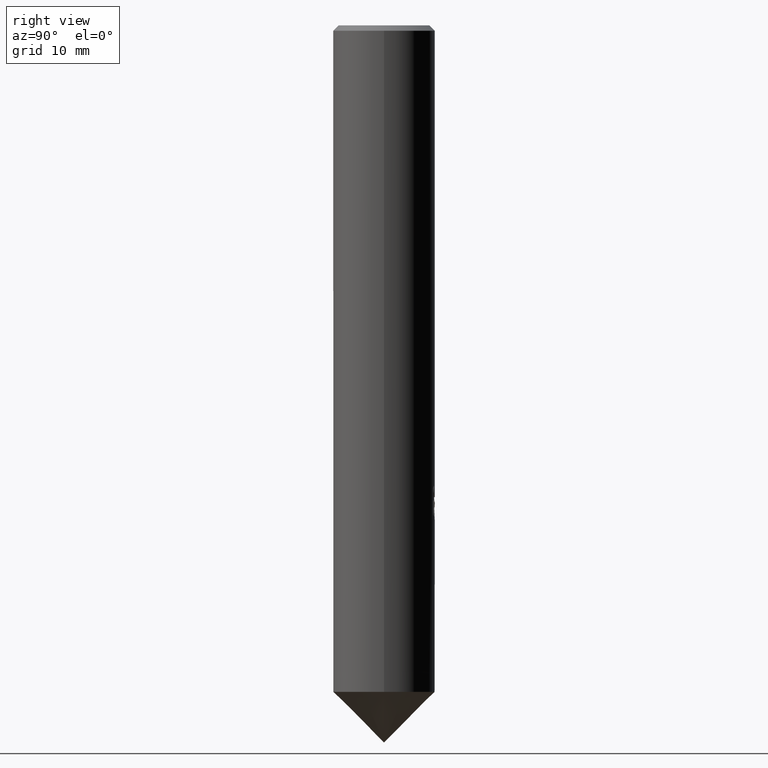
[diagram: clean part render]
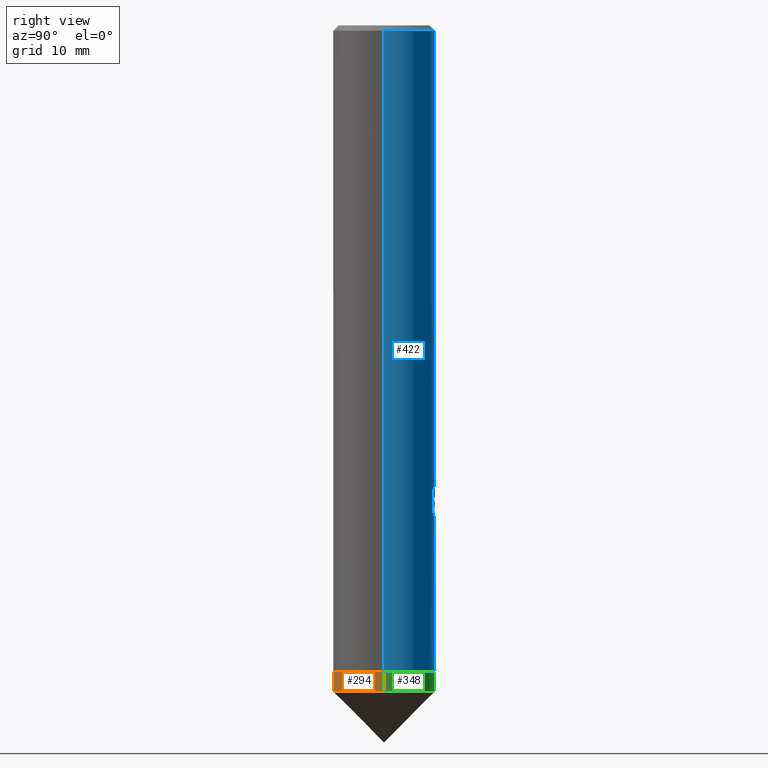
[diagram: same view with three faces highlighted in distinct colors, each labeled with its STEP entity id]
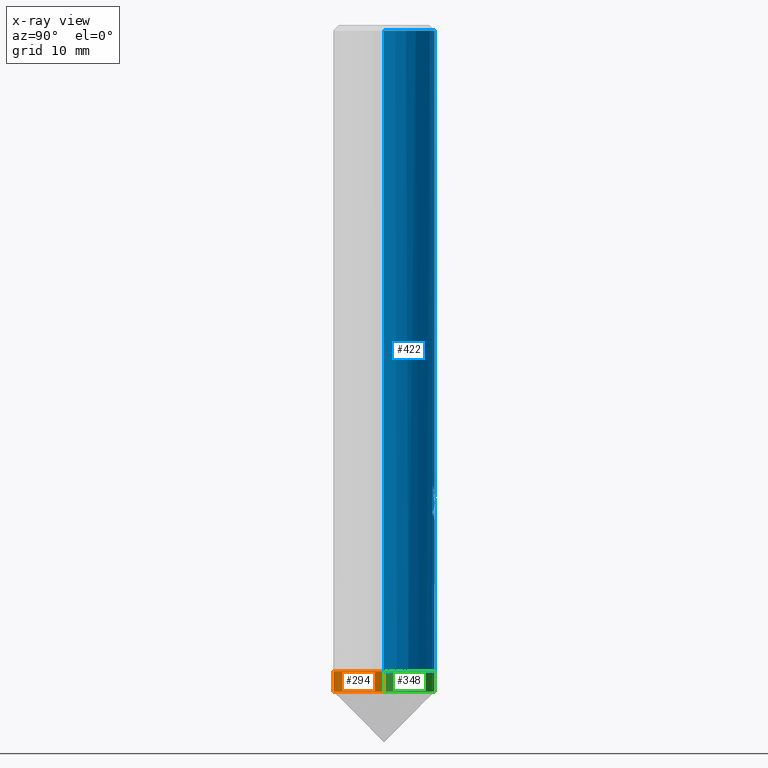
[diagram: x-ray of the same camera — body ghosted, the three highlighted faces saturated]
A machine part, right view with three faces highlighted in distinct colors.
The next image is the same camera in x-ray (body ghosted, the three faces saturated) — at least one of them is partly hidden behind the body in this view.
Their STEP definitions:

[orange] entity #294 — the highlighted cylindrical surface (partial cylindrical patch) has radius 7.5 mm, axis along (-0, -0, 1).
#196=EDGE_CURVE('',#366,#266,#508,.T.);
#198=EDGE_CURVE('',#266,#382,#510,.T.);
#226=EDGE_CURVE('',#366,#232,#542,.T.);
#232=VERTEX_POINT('',#548);
#266=VERTEX_POINT('',#585);
#282=EDGE_CURVE('',#382,#232,#603,.T.);
#294=ADVANCED_FACE('',(#616),#617,.T.);
#366=VERTEX_POINT('',#696);
#382=VERTEX_POINT('',#712);
#508=LINE('',#843,#844);
#510=CIRCLE('',#847,7.5);
#542=CIRCLE('',#913,7.5);
#548=CARTESIAN_POINT('',(-7.48169484918208,-0.523681376146174,-98.5));
#585=CARTESIAN_POINT('',(7.5,9.18454765366783E-016,-95.5));
#603=ELLIPSE('',#1078,214.902812608787,7.5);
#616=FACE_OUTER_BOUND('',#1119,.T.);
#617=CYLINDRICAL_SURFACE('',#1120,7.5);
#696=CARTESIAN_POINT('',(7.5,9.18454765366783E-016,-98.5));
#712=CARTESIAN_POINT('',(-7.47364246253125,-0.628226346351209,-95.5));
#843=CARTESIAN_POINT('',(7.5,9.18454765366783E-016,-97.0));
#844=VECTOR('',#1611,1.0);
#847=AXIS2_PLACEMENT_3D('',#1612,#1613,#1614);
#913=AXIS2_PLACEMENT_3D('',#1653,#1654,#1655);
#1078=AXIS2_PLACEMENT_3D('',#1710,#1711,#1712);
#1119=EDGE_LOOP('',(#1728,#1729,#1730,#1731));
#1120=AXIS2_PLACEMENT_3D('',#1732,#1733,#1734);
#1611=DIRECTION('',(-0.0,-0.0,1.0));
#1612=CARTESIAN_POINT('',(0.0,0.0,-95.5));
#1613=DIRECTION('',(0.0,0.0,-1.0));
#1614=DIRECTION('',(-1.0,0.0,0.0));
#1653=CARTESIAN_POINT('',(0.0,0.0,-98.5));
#1654=DIRECTION('',(0.0,0.0,-1.0));
#1655=DIRECTION('',(-1.0,0.0,0.0));
#1710=CARTESIAN_POINT('',(0.0,0.0,-106.01));
#1711=DIRECTION('',(0.0348782368720624,-0.998782025129912,-0.0348994967025078));
#1712=DIRECTION('',(-0.0012179748700881,0.0348782368720695,-0.999390827019096));
#1728=ORIENTED_EDGE('',*,*,#196,.T.);
#1729=ORIENTED_EDGE('',*,*,#198,.T.);
#1730=ORIENTED_EDGE('',*,*,#282,.T.);
#1731=ORIENTED_EDGE('',*,*,#226,.F.);
#1732=CARTESIAN_POINT('',(0.0,0.0,-97.0));
#1733=DIRECTION('',(-0.0,-0.0,1.0));
#1734=DIRECTION('',(-1.0,0.0,0.0));

[blue] entity #422 — the highlighted cylindrical surface (partial cylindrical patch) has radius 7.5 mm, axis along (-0, -0, 1).
#178=VERTEX_POINT('',#487);
#200=VERTEX_POINT('',#512);
#204=EDGE_CURVE('',#178,#320,#516,.T.);
#228=VERTEX_POINT('',#544);
#236=VERTEX_POINT('',#552);
#240=EDGE_CURVE('',#358,#378,#556,.T.);
#242=VERTEX_POINT('',#558);
#246=EDGE_CURVE('',#376,#460,#563,.T.);
#254=EDGE_CURVE('',#450,#242,#572,.T.);
#258=EDGE_CURVE('',#236,#326,#577,.T.);
#260=VERTEX_POINT('',#579);
#276=EDGE_CURVE('',#326,#260,#597,.T.);
#290=EDGE_CURVE('',#260,#376,#612,.T.);
#292=EDGE_CURVE('',#426,#434,#614,.T.);
#298=VERTEX_POINT('',#622);
#304=VERTEX_POINT('',#628);
#310=EDGE_CURVE('',#428,#320,#635,.T.);
#312=VERTEX_POINT('',#637);
#320=VERTEX_POINT('',#645);
#324=EDGE_CURVE('',#378,#236,#649,.T.);
#326=VERTEX_POINT('',#651);
#342=EDGE_CURVE('',#200,#450,#668,.T.);
#356=EDGE_CURVE('',#424,#426,#686,.T.);
#358=VERTEX_POINT('',#688);
#360=EDGE_CURVE('',#298,#304,#690,.T.);
#376=VERTEX_POINT('',#706);
#378=VERTEX_POINT('',#708);
#386=EDGE_CURVE('',#434,#312,#717,.T.);
#394=EDGE_CURVE('',#298,#178,#726,.T.);
#414=EDGE_CURVE('',#228,#304,#746,.T.);
#422=ADVANCED_FACE('',(#754,#755),#756,.T.);
#424=VERTEX_POINT('',#758);
#426=VERTEX_POINT('',#760);
#428=VERTEX_POINT('',#762);
#434=VERTEX_POINT('',#768);
#444=EDGE_CURVE('',#460,#424,#779,.T.);
#450=VERTEX_POINT('',#785);
#458=EDGE_CURVE('',#228,#428,#795,.T.);
#460=VERTEX_POINT('',#797);
#462=EDGE_CURVE('',#242,#358,#799,.T.);
#466=EDGE_CURVE('',#312,#200,#803,.T.);
#487=CARTESIAN_POINT('',(0.0,7.5,-0.799999999999997));
#512=CARTESIAN_POINT('',(1.33238621064061,7.38070098199993,-68.0000004614549));
#516=CIRCLE('',#856,7.5);
#544=CARTESIAN_POINT('',(-3.09755287899954,6.83045870800795,-95.5));
#552=CARTESIAN_POINT('',(-3.83043648745818E-016,7.5,-70.5001335919803));
#556=CIRCLE('',#953,7.5);
#558=CARTESIAN_POINT('',(-0.810631573971744,7.45606306647684,-69.072139580501));
#563=B_SPLINE_CURVE_WITH_KNOTS('',3,(#961,#962,#963,#964,#965,#966,#967,#968,#969,#970,#971,#972,#973,#974,#975,#976),.UNSPECIFIED.,.F.,.F.,(4,2,2,2,2,2,2,4),(9.81173901346982,10.3283515357489,10.8450345072355,11.3617174787222,11.8784004502088,12.3950834216954,12.91080996831,13.4265365149246),.UNSPECIFIED.);
#572=B_SPLINE_CURVE_WITH_KNOTS('',3,(#988,#989,#990,#991,#992,#993,#994,#995,#996,#997,#998,#999,#1000,#1001,#1002,#1003,#1004,#1005,#1006,#1007,#1008,#1009,#1010,#1011,#1012,#1013,#1014),.UNSPECIFIED.,.F.,.F.,(4,2,3,2,2,2,2,2,2,2,2,2,4),(-0.904509833545436,-0.452254916772718,0.0,0.452254916772718,0.904509833545436,1.35793525760971,1.81136068167399,2.26281485429434,2.71426902691469,3.16630465879039,3.61834029066608,4.07037592254178,4.52241155441748),.UNSPECIFIED.);
#577=B_SPLINE_CURVE_WITH_KNOTS('',3,(#1020,#1021,#1022,#1023,#1024,#1025,#1026,#1027,#1028,#1029,#1030,#1031,#1032,#1033,#1034,#1035,#1036,#1037,#1038,#1039,#1040,#1041,#1042,#1043),.UNSPECIFIED.,.F.,.F.,(4,2,2,2,2,2,2,2,2,2,2,4),(5.60096093075086,5.97408963382988,6.3472183369089,6.72034703998792,7.09347574306694,7.46660444614596,7.83878206355249,8.21095968095902,8.58313729836555,8.95531491577207,9.33006131062293,9.70480770547378),.UNSPECIFIED.);
#579=CARTESIAN_POINT('',(-2.22842125407166,7.16129448594328,-71.9534673181325));
#597=ELLIPSE('',#1069,8.36196324032145,7.5);
#612=B_SPLINE_CURVE_WITH_KNOTS('',3,(#1090,#1091,#1092,#1093,#1094,#1095,#1096,#1097,#1098,#1099,#1100,#1101,#1102,#1103,#1104,#1105),.UNSPECIFIED.,.F.,.F.,(4,2,2,2,2,2,2,4),(9.81173901346982,10.3283515357489,10.8450345072355,11.3617174787222,11.8784004502088,12.3950834216954,12.91080996831,13.4265365149246),.UNSPECIFIED.);
#614=B_SPLINE_CURVE_WITH_KNOTS('',3,(#1108,#1109,#1110,#1111,#1112,#1113,#1114,#1115,#1116,#1117),.UNSPECIFIED.,.F.,.F.,(4,2,2,2,4),(13.4265350890233,13.9422615882962,14.4579880875692,14.9744413641915,15.4908946408138),.UNSPECIFIED.);
#622=CARTESIAN_POINT('',(-7.5,-9.18454765366783E-016,-0.799999999999997));
#628=CARTESIAN_POINT('',(-7.5,-3.90867229828002E-015,-92.4758135150197));
#635=LINE('',#1167,#1168);
#637=CARTESIAN_POINT('',(2.22868344191096,7.16121289417874,-68.8584140608035));
#645=CARTESIAN_POINT('',(7.5,9.18454765366783E-016,-0.799999999999997));
#649=B_SPLINE_CURVE_WITH_KNOTS('',3,(#1204,#1205,#1206,#1207,#1208,#1209,#1210,#1211,#1212,#1213,#1214,#1215,#1216,#1217,#1218,#1219,#1220,#1221,#1222,#1223,#1224,#1225,#1226,#1227),.UNSPECIFIED.,.F.,.F.,(4,2,2,2,2,2,2,2,2,2,2,4),(5.60096093075086,5.97408963382988,6.3472183369089,6.72034703998792,7.09347574306694,7.46660444614596,7.83878206355249,8.21095968095902,8.58313729836555,8.95531491577207,9.33006131062293,9.70480770547378),.UNSPECIFIED.);
#651=CARTESIAN_POINT('',(0.955211726384364,7.43892267453949,-70.3838832790445));
#668=B_SPLINE_CURVE_WITH_KNOTS('',3,(#1250,#1251,#1252,#1253,#1254,#1255,#1256,#1257,#1258,#1259,#1260,#1261,#1262,#1263,#1264,#1265,#1266,#1267,#1268,#1269,#1270,#1271,#1272,#1273,#1274,#1275,#1276),.UNSPECIFIED.,.F.,.F.,(4,2,3,2,2,2,2,2,2,2,2,2,4),(-0.904509833545436,-0.452254916772718,0.0,0.452254916772718,0.904509833545436,1.35793525760971,1.81136068167399,2.26281485429434,2.71426902691469,3.16630465879039,3.61834029066608,4.07037592254178,4.52241155441748),.UNSPECIFIED.);
#686=LINE('',#1296,#1297);
#688=CARTESIAN_POINT('',(-0.937223317046688,7.44121041591917,-68.5285369978285));
#690=LINE('',#1302,#1303);
#706=CARTESIAN_POINT('',(2.60902496438869E-016,7.5,-73.0517089335056));
#708=CARTESIAN_POINT('',(-1.72512233984799,7.29890080166578,-68.5285369978285));
#717=LINE('',#1372,#1373);
#726=CIRCLE('',#1386,7.5);
#746=ELLIPSE('',#1424,16.3893911124316,7.5);
#754=FACE_OUTER_BOUND('',#1458,.T.);
#755=FACE_BOUND('',#1459,.T.);
#756=CYLINDRICAL_SURFACE('',#1460,7.5);
#758=CARTESIAN_POINT('',(1.45593463626493,7.357326575253,-70.1998219326819));
#760=CARTESIAN_POINT('',(1.45593463626493,7.35732657525301,-72.5978919652552));
#762=CARTESIAN_POINT('',(7.5,9.18454765366783E-016,-95.5));
#768=CARTESIAN_POINT('',(2.22868344191097,7.16121289417874,-71.8169428338762));
#779=ELLIPSE('',#1513,22.8599593002733,7.5);
#785=CARTESIAN_POINT('',(-1.4969480123102E-014,7.5,-69.7054480196239));
#795=CIRCLE('',#1534,7.5);
#797=CARTESIAN_POINT('',(0.483505211726384,7.48439862047937,-72.9997214983713));
#799=B_SPLINE_CURVE_WITH_KNOTS('',3,(#1539,#1540,#1541,#1542,#1543,#1544,#1545,#1546,#1547,#1548,#1549,#1550,#1551,#1552,#1553,#1554,#1555,#1556,#1557,#1558,#1559,#1560,#1561,#1562,#1563,#1564,#1565),.UNSPECIFIED.,.F.,.F.,(4,2,3,2,2,2,2,2,2,2,2,2,4),(-0.904509833545436,-0.452254916772718,0.0,0.452254916772718,0.904509833545436,1.35793525760971,1.81136068167399,2.26281485429434,2.71426902691469,3.16630465879039,3.61834029066608,4.07037592254178,4.52241155441748),.UNSPECIFIED.);
#803=B_SPLINE_CURVE_WITH_KNOTS('',3,(#1570,#1571,#1572,#1573,#1574,#1575,#1576,#1577,#1578,#1579),.UNSPECIFIED.,.F.,.F.,(4,2,2,2,4),(1.03290658924787,1.5493598838718,2.06581317849573,2.58153969510637,3.09726621171701),.UNSPECIFIED.);
#856=AXIS2_PLACEMENT_3D('',#1616,#1617,#1618);
#953=AXIS2_PLACEMENT_3D('',#1657,#1658,#1659);
#961=CARTESIAN_POINT('',(-2.29836033517507,7.13915539610211,-71.8545128368396));
#962=CARTESIAN_POINT('',(-2.19906627440896,7.17112185679148,-72.0018724018475));
#963=CARTESIAN_POINT('',(-2.08667040901182,7.20493962306147,-72.137022562698));
#964=CARTESIAN_POINT('',(-1.84755144318272,7.26993165159933,-72.3762535029821));
#965=CARTESIAN_POINT('',(-1.71239495784496,7.30345299158513,-72.4887644715165));
#966=CARTESIAN_POINT('',(-1.41755423048429,7.36636016600066,-72.6876005022122));
#967=CARTESIAN_POINT('',(-1.25786870894077,7.39569192721202,-72.7739407706185));
#968=CARTESIAN_POINT('',(-0.923862733634749,7.44479485430824,-72.9130442039803));
#969=CARTESIAN_POINT('',(-0.749249283065715,7.46457069233769,-72.9659171020197));
#970=CARTESIAN_POINT('',(-0.397067779171441,7.49156374115895,-73.0354654713975));
#971=CARTESIAN_POINT('',(-0.219494518578778,7.49876553321981,-73.0521205558477));
#972=CARTESIAN_POINT('',(0.124635152133773,7.50093452385587,-73.0521205558477));
#973=CARTESIAN_POINT('',(0.301969563829018,7.49599164569269,-73.0355259588882));
#974=CARTESIAN_POINT('',(0.653822909888598,7.47352607356549,-72.9661414639208));
#975=CARTESIAN_POINT('',(0.828346642073313,7.45601892785507,-72.9133708640003));
#976=CARTESIAN_POINT('',(0.99530970164221,7.4336638744173,-72.8439151523424));
#988=CARTESIAN_POINT('',(1.10864643377757,7.41760763891379,-67.6894358580486));
#989=CARTESIAN_POINT('',(1.21458332167573,7.40177415746114,-67.7955147592773));
#990=CARTESIAN_POINT('',(1.30659335847987,7.38557219237147,-67.9298903231175));
#991=CARTESIAN_POINT('',(1.4288125046028,7.36290416161891,-68.2247772323026));
#992=CARTESIAN_POINT('',(1.45900163531428,7.35671898526444,-68.3853183820537));
#993=CARTESIAN_POINT('',(1.45900163531428,7.35671898526444,-68.536070020978));
#994=CARTESIAN_POINT('',(1.45900163531428,7.35671898526444,-68.6868216599022));
#995=CARTESIAN_POINT('',(1.4288125046028,7.36290416161891,-68.8473628096534));
#996=CARTESIAN_POINT('',(1.30659335847987,7.38557219237147,-69.1422497188385));
#997=CARTESIAN_POINT('',(1.21458332167573,7.40177415746114,-69.2766252826787));
#998=CARTESIAN_POINT('',(1.00243536444958,7.43348209992201,-69.4890576341189));
#999=CARTESIAN_POINT('',(0.867915974041627,7.45108824597777,-69.5813229205535));
#1000=CARTESIAN_POINT('',(0.572678300806284,7.47957443641096,-69.7039012217169));
#1001=CARTESIAN_POINT('',(0.411927665311358,7.49020423250816,-69.7341943379578));
#1002=CARTESIAN_POINT('',(0.110483657548405,7.50069590195699,-69.7341943379578));
#1003=CARTESIAN_POINT('',(-0.0499631172204885,7.50128560435152,-69.7041364775545));
#1004=CARTESIAN_POINT('',(-0.345035493746119,7.49351269697065,-69.5819527505174));
#1005=CARTESIAN_POINT('',(-0.47967086753128,7.4854046675746,-69.4898344206221));
#1006=CARTESIAN_POINT('',(-0.692389920413091,7.46873434235238,-69.2772973205899));
#1007=CARTESIAN_POINT('',(-0.784656861951013,7.4590957448354,-69.1426202483256));
#1008=CARTESIAN_POINT('',(-0.907089795370017,7.44519871171112,-68.8473539492699));
#1009=CARTESIAN_POINT('',(-0.937246998645411,7.44120743317441,-68.6867485649366));
#1010=CARTESIAN_POINT('',(-0.937246998645411,7.44120743317441,-68.3853914770194));
#1011=CARTESIAN_POINT('',(-0.907089795370017,7.44519871171112,-68.224786092686));
#1012=CARTESIAN_POINT('',(-0.784656861951013,7.4590957448354,-67.9295197936303));
#1013=CARTESIAN_POINT('',(-0.692389920413091,7.46873434235238,-67.794842721366));
#1014=CARTESIAN_POINT('',(-0.585961944133862,7.47707486922706,-67.6885057800613));
#1020=CARTESIAN_POINT('',(-1.68812520786749,7.30754632435281,-68.1633615326722));
#1021=CARTESIAN_POINT('',(-1.71322417284954,7.30174818179187,-68.2909902042745));
#1022=CARTESIAN_POINT('',(-1.72518169650311,7.29888677224484,-68.419460200195));
#1023=CARTESIAN_POINT('',(-1.72518169650311,7.29888677224484,-68.6682126689143));
#1024=CARTESIAN_POINT('',(-1.71322417284954,7.30174818179187,-68.7966826648348));
#1025=CARTESIAN_POINT('',(-1.66302624288545,7.31334446691376,-69.0519400080394));
#1026=CARTESIAN_POINT('',(-1.62479841200523,7.32206890991303,-69.178730302039));
#1027=CARTESIAN_POINT('',(-1.52389065068901,7.34373339294348,-69.4216658621551));
#1028=CARTESIAN_POINT('',(-1.46113073981184,7.35666577394528,-69.5380131515132));
#1029=CARTESIAN_POINT('',(-1.31624403788719,7.38396478733673,-69.7530713382023));
#1030=CARTESIAN_POINT('',(-1.23410642650275,7.39829839251124,-69.8517791367584));
#1031=CARTESIAN_POINT('',(-1.05934846875904,7.42533357453121,-70.0262753346161));
#1032=CARTESIAN_POINT('',(-0.960731197084373,7.43899782715787,-70.1081331109411));
#1033=CARTESIAN_POINT('',(-0.745866160019249,7.46360347129761,-70.2525441398834));
#1034=CARTESIAN_POINT('',(-0.629621415304482,7.47451439414858,-70.3151070765314));
#1035=CARTESIAN_POINT('',(-0.386964218263434,7.49099774709214,-70.4156692899029));
#1036=CARTESIAN_POINT('',(-0.260344986327904,7.49656282466933,-70.4537505446869));
#1037=CARTESIAN_POINT('',(-0.00556198326740301,7.50108010625554,-70.5037286641956));
#1038=CARTESIAN_POINT('',(0.122604122569059,7.50002392767339,-70.5156143834777));
#1039=CARTESIAN_POINT('',(0.371444178459269,7.49183776490605,-70.5156143834777));
#1040=CARTESIAN_POINT('',(0.500250849857512,7.48439745225386,-70.5035669773562));
#1041=CARTESIAN_POINT('',(0.75591256093333,7.46291178671589,-70.4531508018192));
#1042=CARTESIAN_POINT('',(0.882771086097311,7.44887448714623,-70.4147962767318));
#1043=CARTESIAN_POINT('',(1.00420714310337,7.43246715524126,-70.3642578193381));
#1069=AXIS2_PLACEMENT_3D('',#1706,#1707,#1708);
#1090=CARTESIAN_POINT('',(-2.29836033517507,7.13915539610211,-71.8545128368396));
#1091=CARTESIAN_POINT('',(-2.19906627440896,7.17112185679148,-72.0018724018475));
#1092=CARTESIAN_POINT('',(-2.08667040901182,7.20493962306147,-72.137022562698));
#1093=CARTESIAN_POINT('',(-1.84755144318272,7.26993165159933,-72.3762535029821));
#1094=CARTESIAN_POINT('',(-1.71239495784496,7.30345299158513,-72.4887644715165));
#1095=CARTESIAN_POINT('',(-1.41755423048429,7.36636016600066,-72.6876005022122));
#1096=CARTESIAN_POINT('',(-1.25786870894077,7.39569192721202,-72.7739407706185));
#1097=CARTESIAN_POINT('',(-0.923862733634749,7.44479485430824,-72.9130442039803));
#1098=CARTESIAN_POINT('',(-0.749249283065715,7.46457069233769,-72.9659171020197));
#1099=CARTESIAN_POINT('',(-0.397067779171441,7.49156374115895,-73.0354654713975));
#1100=CARTESIAN_POINT('',(-0.219494518578778,7.49876553321981,-73.0521205558477));
#1101=CARTESIAN_POINT('',(0.124635152133773,7.50093452385587,-73.0521205558477));
#1102=CARTESIAN_POINT('',(0.301969563829018,7.49599164569269,-73.0355259588882));
#1103=CARTESIAN_POINT('',(0.653822909888598,7.47352607356549,-72.9661414639208));
#1104=CARTESIAN_POINT('',(0.828346642073313,7.45601892785507,-72.9133708640003));
#1105=CARTESIAN_POINT('',(0.99530970164221,7.4336638744173,-72.8439151523424));
#1108=CARTESIAN_POINT('',(0.995309245010659,7.4336639355567,-72.8439144288741));
#1109=CARTESIAN_POINT('',(1.16227229054395,7.41130889443818,-72.7744587234116));
#1110=CARTESIAN_POINT('',(1.32196963887101,7.3841049748622,-72.6882068071625));
#1111=CARTESIAN_POINT('',(1.61687371380183,7.32518459834461,-72.489520864549));
#1112=CARTESIAN_POINT('',(1.75208127323699,7.29352240801456,-72.377071985537));
#1113=CARTESIAN_POINT('',(1.99147895997876,7.231826359247,-72.1377822503925));
#1114=CARTESIAN_POINT('',(2.10405659773894,7.19956705675755,-72.0024969070207));
#1115=CARTESIAN_POINT('',(2.30291354797822,7.1384458507118,-71.7075190358582));
#1116=CARTESIAN_POINT('',(2.38921121502558,7.10964712170796,-71.547825795169));
#1117=CARTESIAN_POINT('',(2.45871672792749,7.08552835375101,-71.3808547439878));
#1167=CARTESIAN_POINT('',(7.5,9.18454765366783E-016,-89.25));
#1168=VECTOR('',#1755,1.0);
#1204=CARTESIAN_POINT('',(-1.68812520786749,7.30754632435281,-68.1633615326722));
#1205=CARTESIAN_POINT('',(-1.71322417284954,7.30174818179187,-68.2909902042745));
#1206=CARTESIAN_POINT('',(-1.72518169650311,7.29888677224484,-68.419460200195));
#1207=CARTESIAN_POINT('',(-1.72518169650311,7.29888677224484,-68.6682126689143));
#1208=CARTESIAN_POINT('',(-1.71322417284954,7.30174818179187,-68.7966826648348));
#1209=CARTESIAN_POINT('',(-1.66302624288545,7.31334446691376,-69.0519400080394));
#1210=CARTESIAN_POINT('',(-1.62479841200523,7.32206890991303,-69.178730302039));
#1211=CARTESIAN_POINT('',(-1.52389065068901,7.34373339294348,-69.4216658621551));
#1212=CARTESIAN_POINT('',(-1.46113073981184,7.35666577394528,-69.5380131515132));
#1213=CARTESIAN_POINT('',(-1.31624403788719,7.38396478733673,-69.7530713382023));
#1214=CARTESIAN_POINT('',(-1.23410642650275,7.39829839251124,-69.8517791367584));
#1215=CARTESIAN_POINT('',(-1.05934846875904,7.42533357453121,-70.0262753346161));
#1216=CARTESIAN_POINT('',(-0.960731197084373,7.43899782715787,-70.1081331109411));
#1217=CARTESIAN_POINT('',(-0.745866160019249,7.46360347129761,-70.2525441398834));
#1218=CARTESIAN_POINT('',(-0.629621415304482,7.47451439414858,-70.3151070765314));
#1219=CARTESIAN_POINT('',(-0.386964218263434,7.49099774709214,-70.4156692899029));
#1220=CARTESIAN_POINT('',(-0.260344986327904,7.49656282466933,-70.4537505446869));
#1221=CARTESIAN_POINT('',(-0.00556198326740301,7.50108010625554,-70.5037286641956));
#1222=CARTESIAN_POINT('',(0.122604122569059,7.50002392767339,-70.5156143834777));
#1223=CARTESIAN_POINT('',(0.371444178459269,7.49183776490605,-70.5156143834777));
#1224=CARTESIAN_POINT('',(0.500250849857512,7.48439745225386,-70.5035669773562));
#1225=CARTESIAN_POINT('',(0.75591256093333,7.46291178671589,-70.4531508018192));
#1226=CARTESIAN_POINT('',(0.882771086097311,7.44887448714623,-70.4147962767318));
#1227=CARTESIAN_POINT('',(1.00420714310337,7.43246715524126,-70.3642578193381));
#1250=CARTESIAN_POINT('',(1.10864643377757,7.41760763891379,-67.6894358580486));
#1251=CARTESIAN_POINT('',(1.21458332167573,7.40177415746114,-67.7955147592773));
#1252=CARTESIAN_POINT('',(1.30659335847987,7.38557219237147,-67.9298903231175));
#1253=CARTESIAN_POINT('',(1.4288125046028,7.36290416161891,-68.2247772323026));
#1254=CARTESIAN_POINT('',(1.45900163531428,7.35671898526444,-68.3853183820537));
#1255=CARTESIAN_POINT('',(1.45900163531428,7.35671898526444,-68.536070020978));
#1256=CARTESIAN_POINT('',(1.45900163531428,7.35671898526444,-68.6868216599022));
#1257=CARTESIAN_POINT('',(1.4288125046028,7.36290416161891,-68.8473628096534));
#1258=CARTESIAN_POINT('',(1.30659335847987,7.38557219237147,-69.1422497188385));
#1259=CARTESIAN_POINT('',(1.21458332167573,7.40177415746114,-69.2766252826787));
#1260=CARTESIAN_POINT('',(1.00243536444958,7.43348209992201,-69.4890576341189));
#1261=CARTESIAN_POINT('',(0.867915974041627,7.45108824597777,-69.5813229205535));
#1262=CARTESIAN_POINT('',(0.572678300806284,7.47957443641096,-69.7039012217169));
#1263=CARTESIAN_POINT('',(0.411927665311358,7.49020423250816,-69.7341943379578));
#1264=CARTESIAN_POINT('',(0.110483657548405,7.50069590195699,-69.7341943379578));
#1265=CARTESIAN_POINT('',(-0.0499631172204885,7.50128560435152,-69.7041364775545));
#1266=CARTESIAN_POINT('',(-0.345035493746119,7.49351269697065,-69.5819527505174));
#1267=CARTESIAN_POINT('',(-0.47967086753128,7.4854046675746,-69.4898344206221));
#1268=CARTESIAN_POINT('',(-0.692389920413091,7.46873434235238,-69.2772973205899));
#1269=CARTESIAN_POINT('',(-0.784656861951013,7.4590957448354,-69.1426202483256));
#1270=CARTESIAN_POINT('',(-0.907089795370017,7.44519871171112,-68.8473539492699));
#1271=CARTESIAN_POINT('',(-0.937246998645411,7.44120743317441,-68.6867485649366));
#1272=CARTESIAN_POINT('',(-0.937246998645411,7.44120743317441,-68.3853914770194));
#1273=CARTESIAN_POINT('',(-0.907089795370017,7.44519871171112,-68.224786092686));
#1274=CARTESIAN_POINT('',(-0.784656861951013,7.4590957448354,-67.9295197936303));
#1275=CARTESIAN_POINT('',(-0.692389920413091,7.46873434235238,-67.794842721366));
#1276=CARTESIAN_POINT('',(-0.585961944133862,7.47707486922706,-67.6885057800613));
#1296=CARTESIAN_POINT('',(1.45593463626493,7.357326575253,-71.3988569489685));
#1297=VECTOR('',#1818,1.0);
#1302=CARTESIAN_POINT('',(-7.5,-9.18454765366783E-016,-89.25));
#1303=VECTOR('',#1819,1.0);
#1372=CARTESIAN_POINT('',(2.22868344191097,7.16121289417874,-70.3376784473398));
#1373=VECTOR('',#1835,1.0);
#1386=AXIS2_PLACEMENT_3D('',#1847,#1848,#1849);
#1424=AXIS2_PLACEMENT_3D('',#1856,#1857,#1858);
#1458=EDGE_LOOP('',(#1864,#1865,#1866,#1867,#1868,#1869));
#1459=EDGE_LOOP('',(#1870,#1871,#1872,#1873,#1874,#1875,#1876,#1877,#1878,#1879,#1880,#1881,#1882,#1883));
#1460=AXIS2_PLACEMENT_3D('',#1884,#1885,#1886);
#1513=AXIS2_PLACEMENT_3D('',#1901,#1902,#1903);
#1534=AXIS2_PLACEMENT_3D('',#1923,#1924,#1925);
#1539=CARTESIAN_POINT('',(1.10864643377757,7.41760763891379,-67.6894358580486));
#1540=CARTESIAN_POINT('',(1.21458332167573,7.40177415746114,-67.7955147592773));
#1541=CARTESIAN_POINT('',(1.30659335847987,7.38557219237147,-67.9298903231175));
#1542=CARTESIAN_POINT('',(1.4288125046028,7.36290416161891,-68.2247772323026));
#1543=CARTESIAN_POINT('',(1.45900163531428,7.35671898526444,-68.3853183820537));
#1544=CARTESIAN_POINT('',(1.45900163531428,7.35671898526444,-68.536070020978));
#1545=CARTESIAN_POINT('',(1.45900163531428,7.35671898526444,-68.6868216599022));
#1546=CARTESIAN_POINT('',(1.4288125046028,7.36290416161891,-68.8473628096534));
#1547=CARTESIAN_POINT('',(1.30659335847987,7.38557219237147,-69.1422497188385));
#1548=CARTESIAN_POINT('',(1.21458332167573,7.40177415746114,-69.2766252826787));
#1549=CARTESIAN_POINT('',(1.00243536444958,7.43348209992201,-69.4890576341189));
#1550=CARTESIAN_POINT('',(0.867915974041627,7.45108824597777,-69.5813229205535));
#1551=CARTESIAN_POINT('',(0.572678300806284,7.47957443641096,-69.7039012217169));
#1552=CARTESIAN_POINT('',(0.411927665311358,7.49020423250816,-69.7341943379578));
#1553=CARTESIAN_POINT('',(0.110483657548405,7.50069590195699,-69.7341943379578));
#1554=CARTESIAN_POINT('',(-0.0499631172204885,7.50128560435152,-69.7041364775545));
#1555=CARTESIAN_POINT('',(-0.345035493746119,7.49351269697065,-69.5819527505174));
#1556=CARTESIAN_POINT('',(-0.47967086753128,7.4854046675746,-69.4898344206221));
#1557=CARTESIAN_POINT('',(-0.692389920413091,7.46873434235238,-69.2772973205899));
#1558=CARTESIAN_POINT('',(-0.784656861951013,7.4590957448354,-69.1426202483256));
#1559=CARTESIAN_POINT('',(-0.907089795370017,7.44519871171112,-68.8473539492699));
#1560=CARTESIAN_POINT('',(-0.937246998645411,7.44120743317441,-68.6867485649366));
#1561=CARTESIAN_POINT('',(-0.937246998645411,7.44120743317441,-68.3853914770194));
#1562=CARTESIAN_POINT('',(-0.907089795370017,7.44519871171112,-68.224786092686));
#1563=CARTESIAN_POINT('',(-0.784656861951013,7.4590957448354,-67.9295197936303));
#1564=CARTESIAN_POINT('',(-0.692389920413091,7.46873434235238,-67.794842721366));
#1565=CARTESIAN_POINT('',(-0.585961944133862,7.47707486922706,-67.6885057800613));
#1570=CARTESIAN_POINT('',(2.45871674121307,7.08552834914085,-69.2945021738022));
#1571=CARTESIAN_POINT('',(2.38921122587182,7.10964711809027,-69.1275311168399));
#1572=CARTESIAN_POINT('',(2.30291355579819,7.13844584824254,-68.967837870627));
#1573=CARTESIAN_POINT('',(2.10405659857369,7.19956705656667,-68.6728599892589));
#1574=CARTESIAN_POINT('',(1.99147895685353,7.23182636018181,-68.537574641205));
#1575=CARTESIAN_POINT('',(1.75208126180254,7.29352241083216,-68.2982848979215));
#1576=CARTESIAN_POINT('',(1.61687369775399,7.32518460199038,-68.1858360151381));
#1577=CARTESIAN_POINT('',(1.32196961276022,7.38410497963952,-67.9871500658558));
#1578=CARTESIAN_POINT('',(1.16227225898333,7.4113088995155,-67.900898146709));
#1579=CARTESIAN_POINT('',(0.995309207762542,7.43366394054393,-67.831442438918));
#1616=CARTESIAN_POINT('',(0.0,0.0,-0.799999999999997));
#1617=DIRECTION('',(0.0,0.0,-1.0));
#1618=DIRECTION('',(0.0,1.0,0.0));
#1657=CARTESIAN_POINT('',(0.0,0.0,-68.5285369978285));
#1658=DIRECTION('',(0.0,0.0,1.0));
#1659=DIRECTION('',(-1.0,0.0,0.0));
#1706=CARTESIAN_POINT('',(0.0,0.0,-70.8548185560964));
#1707=DIRECTION('',(-0.442195774284071,0.0,0.896918556617774));
#1708=DIRECTION('',(-0.896918556617774,0.0,-0.442195774284071));
#1755=DIRECTION('',(-0.0,-0.0,1.0));
#1818=DIRECTION('',(0.0,0.0,-1.0));
#1819=DIRECTION('',(0.0,0.0,-1.0));
#1835=DIRECTION('',(-0.0,-0.0,1.0));
#1847=CARTESIAN_POINT('',(0.0,0.0,-0.799999999999997));
#1848=DIRECTION('',(0.0,0.0,-1.0));
#1849=DIRECTION('',(0.0,1.0,0.0));
#1856=CARTESIAN_POINT('',(0.0,0.0,-106.01));
#1857=DIRECTION('',(0.825789462960248,-0.329639223559035,0.457613095480474));
#1858=DIRECTION('',(-0.425003055891174,0.169653021306386,0.88915142402449));
#1864=ORIENTED_EDGE('',*,*,#360,.F.);
#1865=ORIENTED_EDGE('',*,*,#394,.T.);
#1866=ORIENTED_EDGE('',*,*,#204,.T.);
#1867=ORIENTED_EDGE('',*,*,#310,.F.);
#1868=ORIENTED_EDGE('',*,*,#458,.F.);
#1869=ORIENTED_EDGE('',*,*,#414,.T.);
#1870=ORIENTED_EDGE('',*,*,#276,.T.);
#1871=ORIENTED_EDGE('',*,*,#290,.T.);
#1872=ORIENTED_EDGE('',*,*,#246,.T.);
#1873=ORIENTED_EDGE('',*,*,#444,.T.);
#1874=ORIENTED_EDGE('',*,*,#356,.T.);
#1875=ORIENTED_EDGE('',*,*,#292,.T.);
#1876=ORIENTED_EDGE('',*,*,#386,.T.);
#1877=ORIENTED_EDGE('',*,*,#466,.T.);
#1878=ORIENTED_EDGE('',*,*,#342,.T.);
#1879=ORIENTED_EDGE('',*,*,#254,.T.);
#1880=ORIENTED_EDGE('',*,*,#462,.T.);
#1881=ORIENTED_EDGE('',*,*,#240,.T.);
#1882=ORIENTED_EDGE('',*,*,#324,.T.);
#1883=ORIENTED_EDGE('',*,*,#258,.T.);
#1884=CARTESIAN_POINT('',(0.0,0.0,-89.25));
#1885=DIRECTION('',(-0.0,-0.0,1.0));
#1886=DIRECTION('',(-1.0,0.0,0.0));
#1901=CARTESIAN_POINT('',(0.0,0.0,-74.3918698622114));
#1902=DIRECTION('',(0.944648353914092,0.0,-0.328084573619969));
#1903=DIRECTION('',(-0.328084573619969,0.0,-0.944648353914092));
#1923=CARTESIAN_POINT('',(0.0,0.0,-95.5));
#1924=DIRECTION('',(0.0,0.0,-1.0));
#1925=DIRECTION('',(-1.0,0.0,0.0));

[green] entity #348 — the highlighted cylindrical surface (partial cylindrical patch) has radius 7.5 mm, axis along (-0, -0, 1).
#188=EDGE_CURVE('',#440,#220,#498,.T.);
#196=EDGE_CURVE('',#366,#266,#508,.T.);
#220=VERTEX_POINT('',#535);
#266=VERTEX_POINT('',#585);
#302=EDGE_CURVE('',#440,#366,#626,.T.);
#348=ADVANCED_FACE('',(#675),#676,.T.);
#366=VERTEX_POINT('',#696);
#392=EDGE_CURVE('',#220,#266,#724,.T.);
#440=VERTEX_POINT('',#775);
#498=ELLIPSE('',#832,16.3893911124316,7.5);
#508=LINE('',#843,#844);
#535=CARTESIAN_POINT('',(-3.09755287899955,6.83045870800795,-95.5));
#585=CARTESIAN_POINT('',(7.5,9.18454765366783E-016,-95.5));
#626=CIRCLE('',#1157,7.5);
#675=FACE_OUTER_BOUND('',#1283,.T.);
#676=CYLINDRICAL_SURFACE('',#1284,7.5);
#696=CARTESIAN_POINT('',(7.5,9.18454765366783E-016,-98.5));
#724=CIRCLE('',#1383,7.5);
#775=CARTESIAN_POINT('',(-1.20684191681012,7.40226536864426,-98.5));
#832=AXIS2_PLACEMENT_3D('',#1591,#1592,#1593);
#843=CARTESIAN_POINT('',(7.5,9.18454765366783E-016,-97.0));
#844=VECTOR('',#1611,1.0);
#1157=AXIS2_PLACEMENT_3D('',#1743,#1744,#1745);
#1283=EDGE_LOOP('',(#1789,#1790,#1791,#1792));
#1284=AXIS2_PLACEMENT_3D('',#1793,#1794,#1795);
#1383=AXIS2_PLACEMENT_3D('',#1844,#1845,#1846);
#1591=CARTESIAN_POINT('',(0.0,0.0,-106.01));
#1592=DIRECTION('',(0.825789462960248,-0.329639223559036,0.457613095480474));
#1593=DIRECTION('',(-0.425003055891174,0.169653021306386,0.88915142402449));
#1611=DIRECTION('',(-0.0,-0.0,1.0));
#1743=CARTESIAN_POINT('',(0.0,0.0,-98.5));
#1744=DIRECTION('',(0.0,0.0,-1.0));
#1745=DIRECTION('',(-1.0,0.0,0.0));
#1789=ORIENTED_EDGE('',*,*,#196,.F.);
#1790=ORIENTED_EDGE('',*,*,#302,.F.);
#1791=ORIENTED_EDGE('',*,*,#188,.T.);
#1792=ORIENTED_EDGE('',*,*,#392,.T.);
#1793=CARTESIAN_POINT('',(0.0,0.0,-97.0));
#1794=DIRECTION('',(-0.0,-0.0,1.0));
#1795=DIRECTION('',(-1.0,0.0,0.0));
#1844=CARTESIAN_POINT('',(0.0,0.0,-95.5));
#1845=DIRECTION('',(0.0,0.0,-1.0));
#1846=DIRECTION('',(-1.0,0.0,0.0));